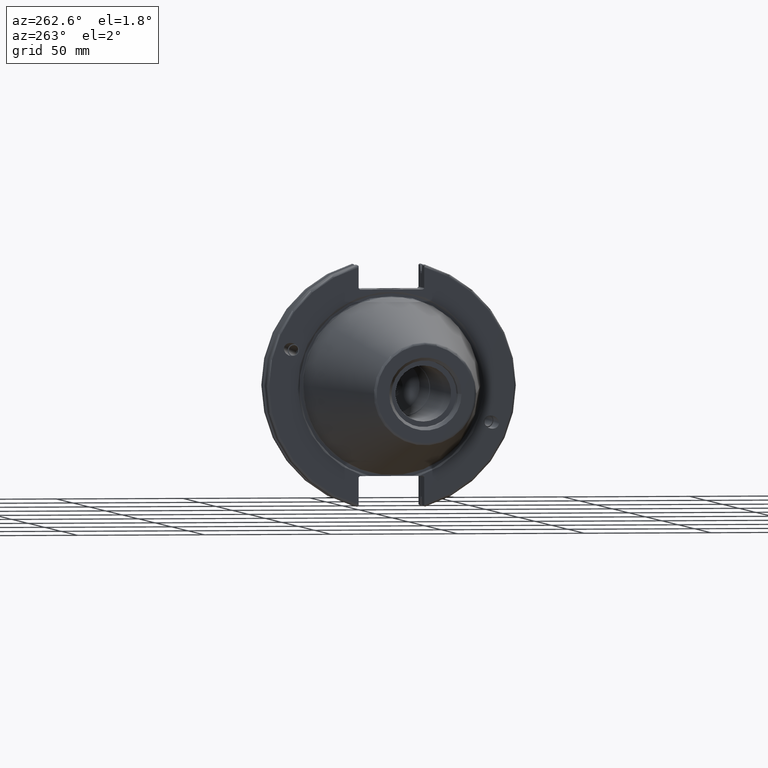
[diagram: clean part render]
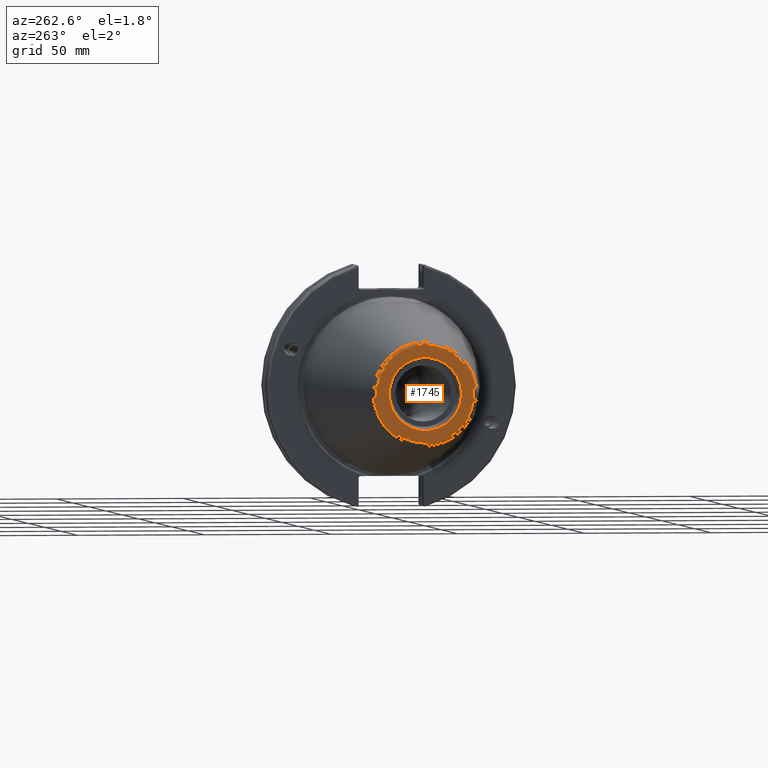
[diagram: same view with one face highlighted and labeled with its STEP entity id]
A machine part, auxiliary view. The second image highlights one B-rep face of the part: STEP entity #1745.
In plain terms, the highlighted planar face has unit normal (-1, 0, 0).
Its self-contained STEP definition (entity closure, byte-faithful):
#78=PLANE('',#1951);
#122=FACE_BOUND('',#347,.T.);
#232=FACE_OUTER_BOUND('',#346,.T.);
#346=EDGE_LOOP('',(#1497));
#347=EDGE_LOOP('',(#1498));
#670=CIRCLE('',#1950,19.2435889303637);
#671=CIRCLE('',#1952,14.2875);
#844=VERTEX_POINT('',#3422);
#845=VERTEX_POINT('',#3426);
#1080=EDGE_CURVE('',#844,#844,#670,.T.);
#1081=EDGE_CURVE('',#845,#845,#671,.T.);
#1497=ORIENTED_EDGE('',*,*,#1080,.F.);
#1498=ORIENTED_EDGE('',*,*,#1081,.T.);
#1745=ADVANCED_FACE('',(#232,#122),#78,.T.);
#1950=AXIS2_PLACEMENT_3D('',#3424,#2383,#2384);
#1951=AXIS2_PLACEMENT_3D('',#3425,#2385,#2386);
#1952=AXIS2_PLACEMENT_3D('',#3427,#2387,#2388);
#2383=DIRECTION('center_axis',(1.,0.,0.));
#2384=DIRECTION('ref_axis',(0.,-1.,1.83697019872103E-16));
#2385=DIRECTION('center_axis',(-1.,0.,0.));
#2386=DIRECTION('ref_axis',(0.,0.,1.));
#2387=DIRECTION('center_axis',(1.,0.,0.));
#2388=DIRECTION('ref_axis',(0.,0.,-1.));
#3422=CARTESIAN_POINT('',(-101.6,-2.35665995876774E-15,19.2435889303637));
#3424=CARTESIAN_POINT('Origin',(-101.6,0.,0.));
#3425=CARTESIAN_POINT('Origin',(-101.6,20.1083333333333,0.));
#3426=CARTESIAN_POINT('',(-101.6,-14.2875,-1.74971411428178E-15));
#3427=CARTESIAN_POINT('Origin',(-101.6,0.,0.));